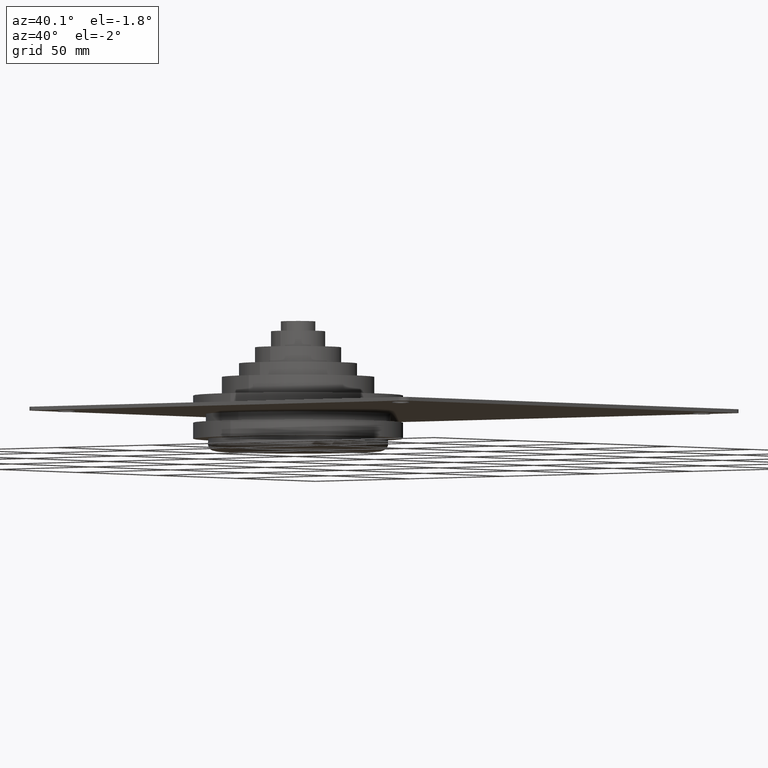
[diagram: clean part render]
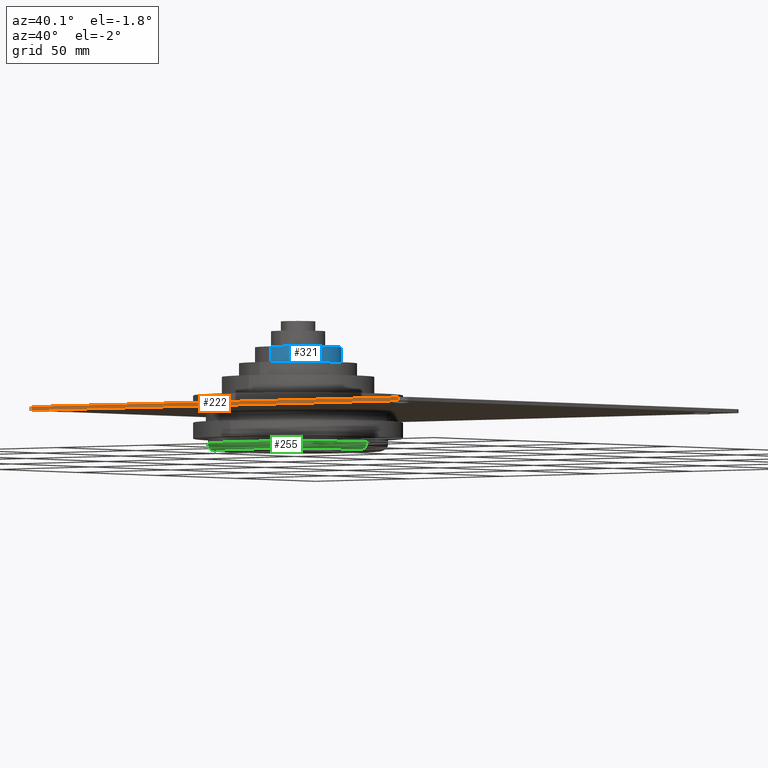
[diagram: same view with three faces highlighted in distinct colors, each labeled with its STEP entity id]
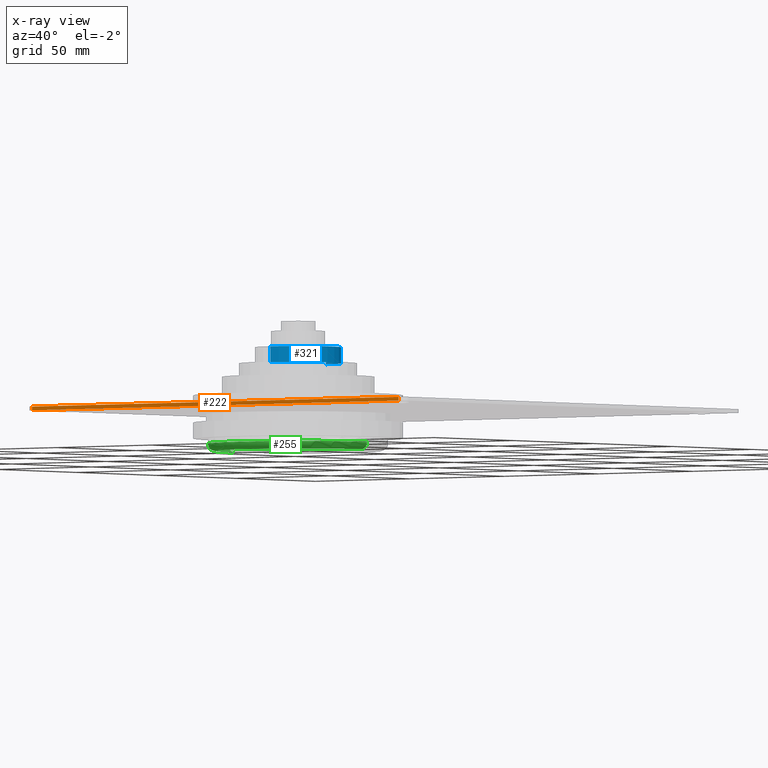
[diagram: x-ray of the same camera — body ghosted, the three highlighted faces saturated]
A machine part, auxiliary view with three faces highlighted in distinct colors.
The next image is the same camera in x-ray (body ghosted, the three faces saturated) — at least one of them is partly hidden behind the body in this view.
Their STEP definitions:

[orange] entity #222 — the highlighted planar face has unit normal (0, -1, 0).
#222=ADVANCED_FACE('',(#462),#463,.T.);
#462=FACE_OUTER_BOUND('',#748,.T.);
#463=PLANE('',#749);
#748=EDGE_LOOP('',(#1182,#1183,#1184,#1185));
#749=AXIS2_PLACEMENT_3D('',#1186,#1187,#1188);
#1182=ORIENTED_EDGE('',*,*,#1738,.T.);
#1183=ORIENTED_EDGE('',*,*,#1739,.F.);
#1184=ORIENTED_EDGE('',*,*,#1740,.T.);
#1185=ORIENTED_EDGE('',*,*,#1735,.T.);
#1186=CARTESIAN_POINT('',(99.9999999999997,0.0,16.5));
#1187=DIRECTION('',(0.0,-1.0,0.0));
#1188=DIRECTION('',(0.0,0.0,-1.0));
#1735=EDGE_CURVE('',#2058,#2056,#2059,.T.);
#1738=EDGE_CURVE('',#2056,#2062,#2063,.T.);
#1739=EDGE_CURVE('',#2064,#2062,#2065,.T.);
#1740=EDGE_CURVE('',#2064,#2058,#2066,.T.);
#2056=VERTEX_POINT('',#2470);
#2058=VERTEX_POINT('',#2472);
#2059=LINE('',#2473,#2474);
#2062=VERTEX_POINT('',#2477);
#2063=LINE('',#2478,#2479);
#2064=VERTEX_POINT('',#2480);
#2065=LINE('',#2481,#2482);
#2066=LINE('',#2483,#2484);
#2470=CARTESIAN_POINT('',(3.0,0.0,15.0));
#2472=CARTESIAN_POINT('',(3.0,0.0,16.5));
#2473=CARTESIAN_POINT('',(3.0,0.0,16.5));
#2474=VECTOR('',#2931,1.0);
#2477=CARTESIAN_POINT('',(196.999999999999,1.00001784630877E-010,15.0));
#2478=CARTESIAN_POINT('',(197.0,0.0,15.0));
#2479=VECTOR('',#2935,1.0);
#2480=CARTESIAN_POINT('',(196.999999999999,1.00001784630877E-010,16.5));
#2481=CARTESIAN_POINT('',(196.999999999999,1.00001784630877E-010,16.5));
#2482=VECTOR('',#2936,1.0);
#2483=CARTESIAN_POINT('',(197.0,0.0,16.5));
#2484=VECTOR('',#2937,1.0);
#2931=DIRECTION('',(0.0,0.0,-1.0));
#2935=DIRECTION('',(1.0,-0.0,0.0));
#2936=DIRECTION('',(0.0,0.0,-1.0));
#2937=DIRECTION('',(-1.0,0.0,0.0));

[blue] entity #321 — the highlighted cylindrical surface (partial cylindrical patch) has radius 17.5 mm, axis along (0, 0, -1).
#321=ADVANCED_FACE('',(#630),#631,.T.);
#630=FACE_OUTER_BOUND('',#916,.T.);
#631=CYLINDRICAL_SURFACE('',#917,17.5);
#916=EDGE_LOOP('',(#1615,#1616,#1617,#1618));
#917=AXIS2_PLACEMENT_3D('',#1619,#1620,#1621);
#1615=ORIENTED_EDGE('',*,*,#1764,.T.);
#1616=ORIENTED_EDGE('',*,*,#1839,.F.);
#1617=ORIENTED_EDGE('',*,*,#1766,.T.);
#1618=ORIENTED_EDGE('',*,*,#1891,.T.);
#1619=CARTESIAN_POINT('',(54.5,106.0,38.75));
#1620=DIRECTION('',(0.0,0.0,-1.0));
#1621=DIRECTION('',(0.0,1.0,0.0));
#1764=EDGE_CURVE('',#2098,#2099,#2100,.T.);
#1766=EDGE_CURVE('',#2103,#2101,#2104,.T.);
#1839=EDGE_CURVE('',#2103,#2099,#2229,.T.);
#1891=EDGE_CURVE('',#2101,#2098,#2283,.T.);
#2098=VERTEX_POINT('',#2524);
#2099=VERTEX_POINT('',#2525);
#2100=LINE('',#2526,#2527);
#2101=VERTEX_POINT('',#2528);
#2103=VERTEX_POINT('',#2530);
#2104=LINE('',#2531,#2532);
#2229=CIRCLE('',#2681,17.5);
#2283=CIRCLE('',#2735,17.5);
#2524=CARTESIAN_POINT('',(54.5,123.5,35.5));
#2525=CARTESIAN_POINT('',(54.5,123.5,42.0));
#2526=CARTESIAN_POINT('',(54.5,123.5,38.75));
#2527=VECTOR('',#2964,1.0);
#2528=CARTESIAN_POINT('',(54.5,88.5,35.5));
#2530=CARTESIAN_POINT('',(54.5,88.5,42.0));
#2531=CARTESIAN_POINT('',(54.5,88.5,38.75));
#2532=VECTOR('',#2968,1.0);
#2681=AXIS2_PLACEMENT_3D('',#3092,#3093,#3094);
#2735=AXIS2_PLACEMENT_3D('',#3173,#3174,#3175);
#2964=DIRECTION('',(0.0,0.0,1.0));
#2968=DIRECTION('',(-0.0,-0.0,-1.0));
#3092=CARTESIAN_POINT('',(54.5,106.0,42.0));
#3093=DIRECTION('',(0.0,-0.0,1.0));
#3094=DIRECTION('',(0.0,1.0,0.0));
#3173=CARTESIAN_POINT('',(54.5,106.0,35.5));
#3174=DIRECTION('',(0.0,-0.0,1.0));
#3175=DIRECTION('',(0.0,1.0,0.0));

[green] entity #255 — the highlighted toroidal blend (fillet) surface has major radius 33.5 mm and minor (blend) radius 3 mm.
#255=ADVANCED_FACE('',(#521),#522,.T.);
#521=FACE_OUTER_BOUND('',#807,.T.);
#522=TOROIDAL_SURFACE('',#808,33.5000000001,2.99999999990001);
#807=EDGE_LOOP('',(#1344,#1345,#1346,#1347,#1348));
#808=AXIS2_PLACEMENT_3D('',#1349,#1350,#1351);
#1344=ORIENTED_EDGE('',*,*,#1805,.F.);
#1345=ORIENTED_EDGE('',*,*,#1806,.T.);
#1346=ORIENTED_EDGE('',*,*,#1807,.F.);
#1347=ORIENTED_EDGE('',*,*,#1808,.F.);
#1348=ORIENTED_EDGE('',*,*,#1801,.F.);
#1349=CARTESIAN_POINT('',(54.5,106.0,2.9999999999));
#1350=DIRECTION('',(0.0,0.0,1.0));
#1351=DIRECTION('',(-1.0,0.0,0.0));
#1801=EDGE_CURVE('',#2164,#2166,#2167,.T.);
#1805=EDGE_CURVE('',#2172,#2164,#2173,.T.);
#1806=EDGE_CURVE('',#2172,#2174,#2175,.T.);
#1807=EDGE_CURVE('',#2176,#2174,#2177,.T.);
#1808=EDGE_CURVE('',#2166,#2176,#2178,.T.);
#2164=VERTEX_POINT('',#2605);
#2166=VERTEX_POINT('',#2607);
#2167=CIRCLE('',#2608,36.5);
#2172=VERTEX_POINT('',#2614);
#2173=CIRCLE('',#2615,2.99999999990001);
#2174=VERTEX_POINT('',#2616);
#2175=CIRCLE('',#2617,33.5);
#2176=VERTEX_POINT('',#2618);
#2177=CIRCLE('',#2619,2.99999999990001);
#2178=CIRCLE('',#2620,36.5);
#2605=CARTESIAN_POINT('',(18.0,106.0,3.00000000003614));
#2607=CARTESIAN_POINT('',(54.5,69.5,3.00000000003614));
#2608=AXIS2_PLACEMENT_3D('',#3024,#3025,#3026);
#2614=CARTESIAN_POINT('',(21.0,106.0,0.0));
#2615=AXIS2_PLACEMENT_3D('',#3031,#3032,#3033);
#2616=CARTESIAN_POINT('',(88.0,106.0,0.0));
#2617=AXIS2_PLACEMENT_3D('',#3034,#3035,#3036);
#2618=CARTESIAN_POINT('',(91.0,106.0,3.00000000003614));
#2619=AXIS2_PLACEMENT_3D('',#3037,#3038,#3039);
#2620=AXIS2_PLACEMENT_3D('',#3040,#3041,#3042);
#3024=CARTESIAN_POINT('',(54.5,106.0,3.00000000003614));
#3025=DIRECTION('',(0.0,-0.0,1.0));
#3026=DIRECTION('',(0.0,1.0,0.0));
#3031=CARTESIAN_POINT('',(20.9999999999,106.0,2.9999999999));
#3032=DIRECTION('',(-0.0,1.0,0.0));
#3033=DIRECTION('',(-1.0,-0.0,0.0));
#3034=CARTESIAN_POINT('',(54.5,106.0,0.0));
#3035=DIRECTION('',(0.0,-0.0,1.0));
#3036=DIRECTION('',(0.0,1.0,0.0));
#3037=CARTESIAN_POINT('',(88.0000000001,106.0,2.9999999999));
#3038=DIRECTION('',(-0.0,1.0,0.0));
#3039=DIRECTION('',(1.0,0.0,0.0));
#3040=CARTESIAN_POINT('',(54.5,106.0,3.00000000003614));
#3041=DIRECTION('',(0.0,-0.0,1.0));
#3042=DIRECTION('',(0.0,1.0,0.0));